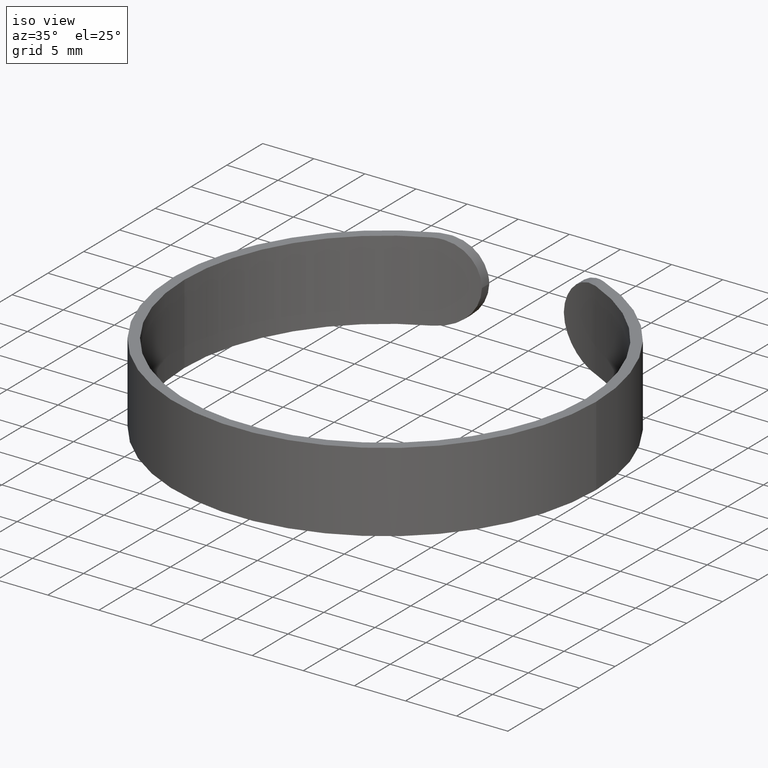
[diagram: clean part render]
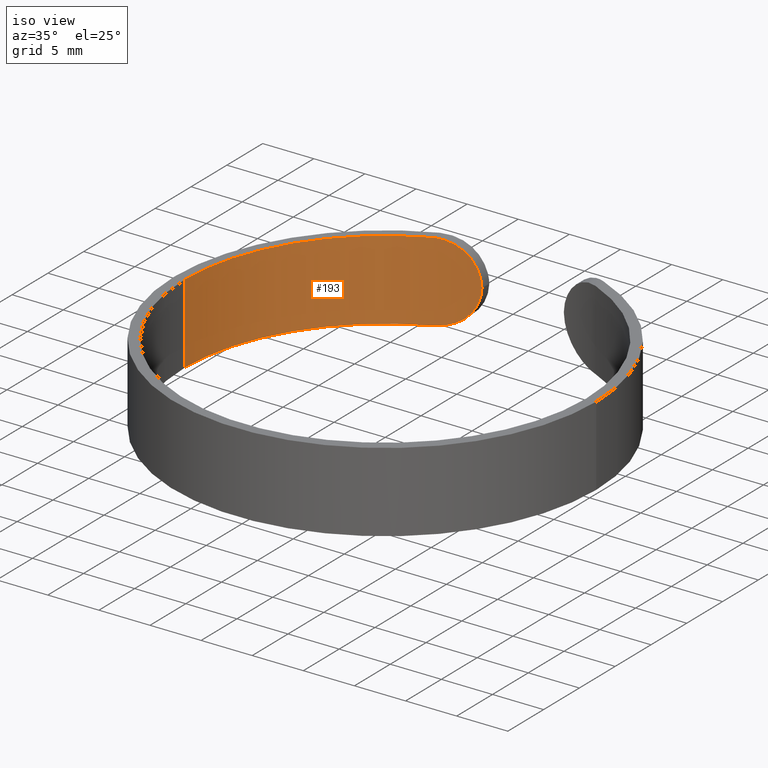
[diagram: same view with one face highlighted and labeled with its STEP entity id]
A machine part, iso view. The second image highlights one B-rep face of the part: STEP entity #193.
In plain terms, the highlighted cylindrical surface (partial cylindrical patch) has radius 19.65 mm, axis along (-0, -0, -1).
Its self-contained STEP definition (entity closure, byte-faithful):
#15 = CARTESIAN_POINT ( 'NONE',  ( -19.65000000000000200, 0.0000000000000000000, 0.0000000000000000000 ) ) ;
#18 = CIRCLE ( 'NONE', #266, 19.65000000000000200 ) ;
#23 = B_SPLINE_CURVE_WITH_KNOTS ( 'NONE', 3,
 ( #594, #142, #251, #296, #550, #395, #588, #298, #43, #403, #597, #96, #639, #502, #204, #544, #633, #635 ),
 .UNSPECIFIED., .F., .F.,
 ( 4, 2, 2, 2, 2, 2, 2, 2, 4 ),
 ( 0.0000000000000000000, 0.0007915782711390858200, 0.001583156542278171600, 0.002374734813417257500, 0.003166313084556343300, 0.003957891355695429500, 0.004749469626834514900, 0.005541047897973600300, 0.006332626169112686600 ),
 .UNSPECIFIED. ) ;
#40 = CARTESIAN_POINT ( 'NONE',  ( -4.589655885951295000, 19.10712834291797800, 5.906866773427263500 ) ) ;
#43 = CARTESIAN_POINT ( 'NONE',  ( -5.450281195804408600, 18.88003390752092500, 0.9069961876388404900 ) ) ;
#51 = CARTESIAN_POINT ( 'NONE',  ( -7.025993754578018400, 18.35282960933736300, 7.687470841140388700 ) ) ;
#59 = ORIENTED_EDGE ( 'NONE', *, *, #87, .T. ) ;
#60 = EDGE_CURVE ( 'NONE', #189, #138, #383, .T. ) ;
#67 = DIRECTION ( 'NONE',  ( -0.0000000000000000000, -0.0000000000000000000, -1.000000000000000000 ) ) ;
#87 = EDGE_CURVE ( 'NONE', #272, #558, #429, .T. ) ;
#90 = CARTESIAN_POINT ( 'NONE',  ( -19.65000000000000200, 0.0000000000000000000, 7.799999999999999800 ) ) ;
#94 = CARTESIAN_POINT ( 'NONE',  ( -4.459208789825901900, 19.13766480374611600, 5.679419032089859000 ) ) ;
#96 = CARTESIAN_POINT ( 'NONE',  ( -4.594805017448511100, 19.10588762039216700, 1.884995766030679100 ) ) ;
#102 = CARTESIAN_POINT ( 'NONE',  ( -7.755833108593570600, 18.05660586022418100, 7.800000000000002500 ) ) ;
#104 = CARTESIAN_POINT ( 'NONE',  ( -6.782413021497170300, 18.44405068199656100, 7.618452531997448300 ) ) ;
#111 = DIRECTION ( 'NONE',  ( -0.0000000000000000000, -0.0000000000000000000, -1.000000000000000000 ) ) ;
#138 = VERTEX_POINT ( 'NONE', #267 ) ;
#142 = CARTESIAN_POINT ( 'NONE',  ( -7.755753132138689700, 18.05664150875250200, -3.239901023247697600E-017 ) ) ;
#144 = DIRECTION ( 'NONE',  ( -0.0000000000000000000, -0.0000000000000000000, -1.000000000000000000 ) ) ;
#146 = CARTESIAN_POINT ( 'NONE',  ( -5.069204769459568100, 18.98588603776352100, 6.534478643096800700 ) ) ;
#148 = DIRECTION ( 'NONE',  ( 1.000000000000000000, 0.0000000000000000000, 0.0000000000000000000 ) ) ;
#173 = AXIS2_PLACEMENT_3D ( 'NONE', #349, #144, #148 ) ;
#186 = CARTESIAN_POINT ( 'NONE',  ( -5.445877405462776500, 18.88129034039584700, 6.889238078391740000 ) ) ;
#189 = VERTEX_POINT ( 'NONE', #15 ) ;
#191 = CARTESIAN_POINT ( 'NONE',  ( -4.157823145740763900, 19.20517071595705600, 4.943413160790116800 ) ) ;
#193 = ADVANCED_FACE ( 'NONE', ( #209 ), #302, .F. ) ;
#199 = CARTESIAN_POINT ( 'NONE',  ( -4.007915069416400300, 19.23692187275283100, 4.166511637766622500 ) ) ;
#201 = EDGE_LOOP ( 'NONE', ( #217, #409, #294, #453, #59 ) ) ;
#204 = CARTESIAN_POINT ( 'NONE',  ( -4.160391861737963400, 19.20461758641536300, 2.847447983199423000 ) ) ;
#209 = FACE_OUTER_BOUND ( 'NONE', #201, .T. ) ;
#211 = CARTESIAN_POINT ( 'NONE',  ( 0.0000000000000000000, 0.0000000000000000000, 7.799999999999999800 ) ) ;
#214 = CARTESIAN_POINT ( 'NONE',  ( -4.001250195373563300, 19.23830805642801800, 3.899999999999967000 ) ) ;
#217 = ORIENTED_EDGE ( 'NONE', *, *, #225, .F. ) ;
#225 = EDGE_CURVE ( 'NONE', #563, #558, #18, .T. ) ;
#238 = AXIS2_PLACEMENT_3D ( 'NONE', #211, #67, #326 ) ;
#240 = CARTESIAN_POINT ( 'NONE',  ( -4.001250195373563300, 19.23830805642801800, 3.899999999999967000 ) ) ;
#251 = CARTESIAN_POINT ( 'NONE',  ( -7.512721737642397800, 18.15899609867131300, 0.02219508991781848200 ) ) ;
#255 = LINE ( 'NONE', #344, #468 ) ;
#266 = AXIS2_PLACEMENT_3D ( 'NONE', #321, #111, #317 ) ;
#267 = CARTESIAN_POINT ( 'NONE',  ( -8.000000000000010700, 17.94777144940284700, 0.0000000000000000000 ) ) ;
#272 = VERTEX_POINT ( 'NONE', #214 ) ;
#294 = ORIENTED_EDGE ( 'NONE', *, *, #60, .T. ) ;
#296 = CARTESIAN_POINT ( 'NONE',  ( -7.029534599250021100, 18.35145145585903800, 0.1117396031660463200 ) ) ;
#298 = CARTESIAN_POINT ( 'NONE',  ( -5.658067134806328700, 18.81913752334129000, 0.7472650604806282400 ) ) ;
#302 = CYLINDRICAL_SURFACE ( 'NONE', #238, 19.65000000000000200 ) ;
#317 = DIRECTION ( 'NONE',  ( 1.000000000000000000, 0.0000000000000000000, 0.0000000000000000000 ) ) ;
#321 = CARTESIAN_POINT ( 'NONE',  ( 0.0000000000000000000, 0.0000000000000000000, 7.799999999999999800 ) ) ;
#326 = DIRECTION ( 'NONE',  ( -1.000000000000000000, 0.0000000000000000000, 0.0000000000000000000 ) ) ;
#344 = CARTESIAN_POINT ( 'NONE',  ( -19.65000000000000200, 0.0000000000000000000, 7.799999999999999800 ) ) ;
#349 = CARTESIAN_POINT ( 'NONE',  ( 0.0000000000000000000, 0.0000000000000000000, 0.0000000000000000000 ) ) ;
#383 = CIRCLE ( 'NONE', #173, 19.65000000000000200 ) ;
#395 = CARTESIAN_POINT ( 'NONE',  ( -6.315880273041521800, 18.60899608421766200, 0.3630019800088214500 ) ) ;
#400 = CARTESIAN_POINT ( 'NONE',  ( -4.040862851705469400, 19.23011968121932800, 4.428450218130042700 ) ) ;
#403 = CARTESIAN_POINT ( 'NONE',  ( -5.070973960904313000, 18.98542779476695200, 1.263479394185255100 ) ) ;
#405 = CARTESIAN_POINT ( 'NONE',  ( -6.314278777546845400, 18.60951411170248100, 7.436130051236946600 ) ) ;
#409 = ORIENTED_EDGE ( 'NONE', *, *, #570, .T. ) ;
#429 = B_SPLINE_CURVE_WITH_KNOTS ( 'NONE', 3,
 ( #240, #199, #400, #191, #489, #94, #40, #541, #146, #186, #534, #494, #405, #104, #51, #456, #102, #553 ),
 .UNSPECIFIED., .F., .F.,
 ( 4, 2, 2, 2, 2, 2, 2, 2, 4 ),
 ( 9.879328984879038300E-005, 0.0008903958337536007600, 0.001681998377658411100, 0.002473600921563221800, 0.003265203465468031700, 0.004056806009372842400, 0.004848408553277653100, 0.005640011097182462900, 0.006431613641087273600 ),
 .UNSPECIFIED. ) ;
#440 = DIRECTION ( 'NONE',  ( -0.0000000000000000000, -0.0000000000000000000, -1.000000000000000000 ) ) ;
#453 = ORIENTED_EDGE ( 'NONE', *, *, #630, .T. ) ;
#456 = CARTESIAN_POINT ( 'NONE',  ( -7.512108181566769200, 18.15927238567606800, 7.777823435038779800 ) ) ;
#468 = VECTOR ( 'NONE', #440, 1000.000000000000000 ) ;
#484 = CARTESIAN_POINT ( 'NONE',  ( -8.000000000000010700, 17.94777144940284700, 7.799999999999999800 ) ) ;
#489 = CARTESIAN_POINT ( 'NONE',  ( -4.243281513413092100, 19.18669641104820300, 5.198743902493916400 ) ) ;
#494 = CARTESIAN_POINT ( 'NONE',  ( -6.087727897746098000, 18.68459986837397900, 7.322724240885011500 ) ) ;
#502 = CARTESIAN_POINT ( 'NONE',  ( -4.244621703907989200, 19.18640092399108700, 2.597689452367675700 ) ) ;
#534 = CARTESIAN_POINT ( 'NONE',  ( -5.651630731262321700, 18.82109915163533400, 7.048312246078865000 ) ) ;
#541 = CARTESIAN_POINT ( 'NONE',  ( -4.895272756425587300, 19.03112186142437100, 6.335745121301681800 ) ) ;
#544 = CARTESIAN_POINT ( 'NONE',  ( -4.041462356063943800, 19.22999685668690300, 3.366796613732741400 ) ) ;
#550 = CARTESIAN_POINT ( 'NONE',  ( -6.787566680149561500, 18.44218038758830900, 0.1797880560017483000 ) ) ;
#553 = CARTESIAN_POINT ( 'NONE',  ( -8.000000000000010700, 17.94777144940284700, 7.799999999999999800 ) ) ;
#558 = VERTEX_POINT ( 'NONE', #484 ) ;
#563 = VERTEX_POINT ( 'NONE', #90 ) ;
#570 = EDGE_CURVE ( 'NONE', #563, #189, #255, .T. ) ;
#588 = CARTESIAN_POINT ( 'NONE',  ( -6.089757919290153900, 18.68391043943559300, 0.4763783794326525400 ) ) ;
#594 = CARTESIAN_POINT ( 'NONE',  ( -8.000000000000010700, 17.94777144940284700, 0.0000000000000000000 ) ) ;
#597 = CARTESIAN_POINT ( 'NONE',  ( -4.899663986239917600, 19.02998864249183700, 1.459033179932446300 ) ) ;
#630 = EDGE_CURVE ( 'NONE', #138, #272, #23, .T. ) ;
#633 = CARTESIAN_POINT ( 'NONE',  ( -4.007931848873324700, 19.23691838290304500, 3.632817393732583200 ) ) ;
#635 = CARTESIAN_POINT ( 'NONE',  ( -4.001250195373563300, 19.23830805642801800, 3.899999999999967000 ) ) ;
#639 = CARTESIAN_POINT ( 'NONE',  ( -4.460867748196974100, 19.13727913676625300, 2.117479369832177700 ) ) ;